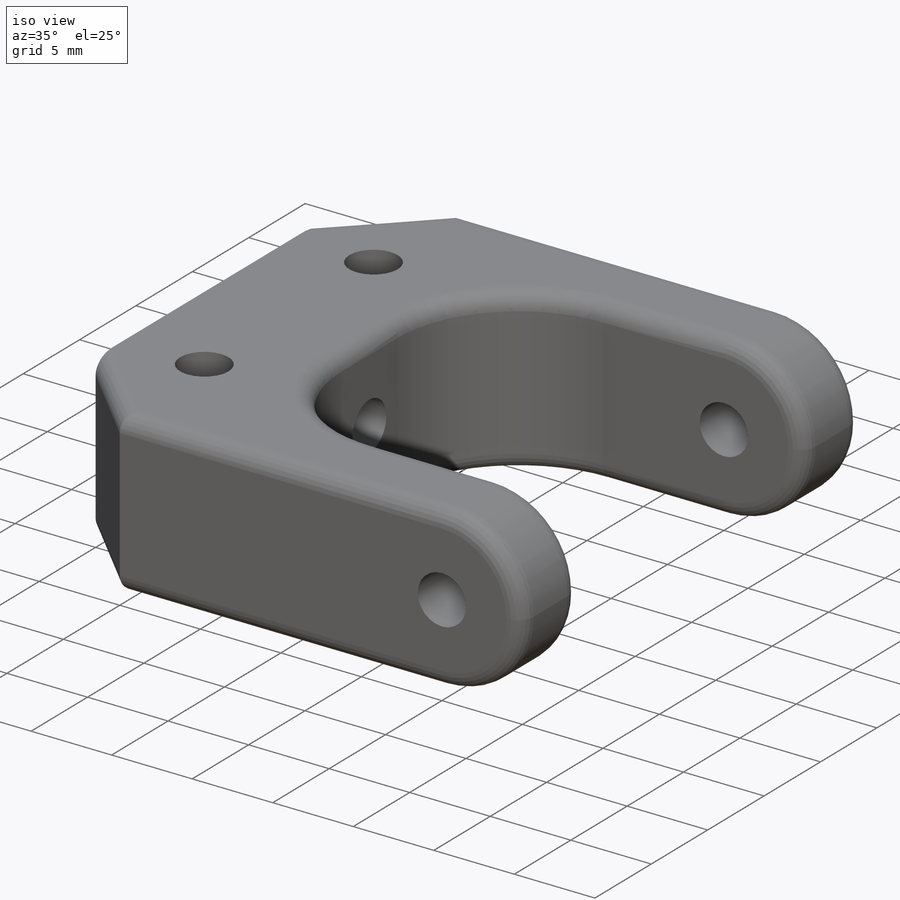
[diagram: iso view]
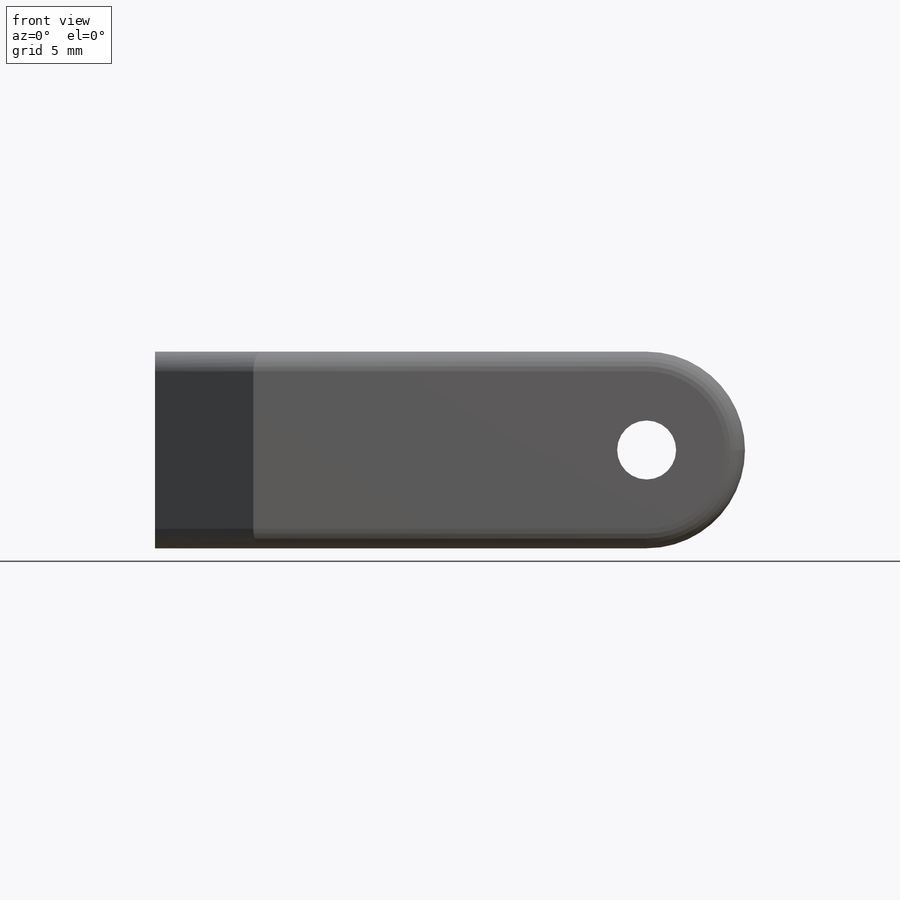
[diagram: front view]
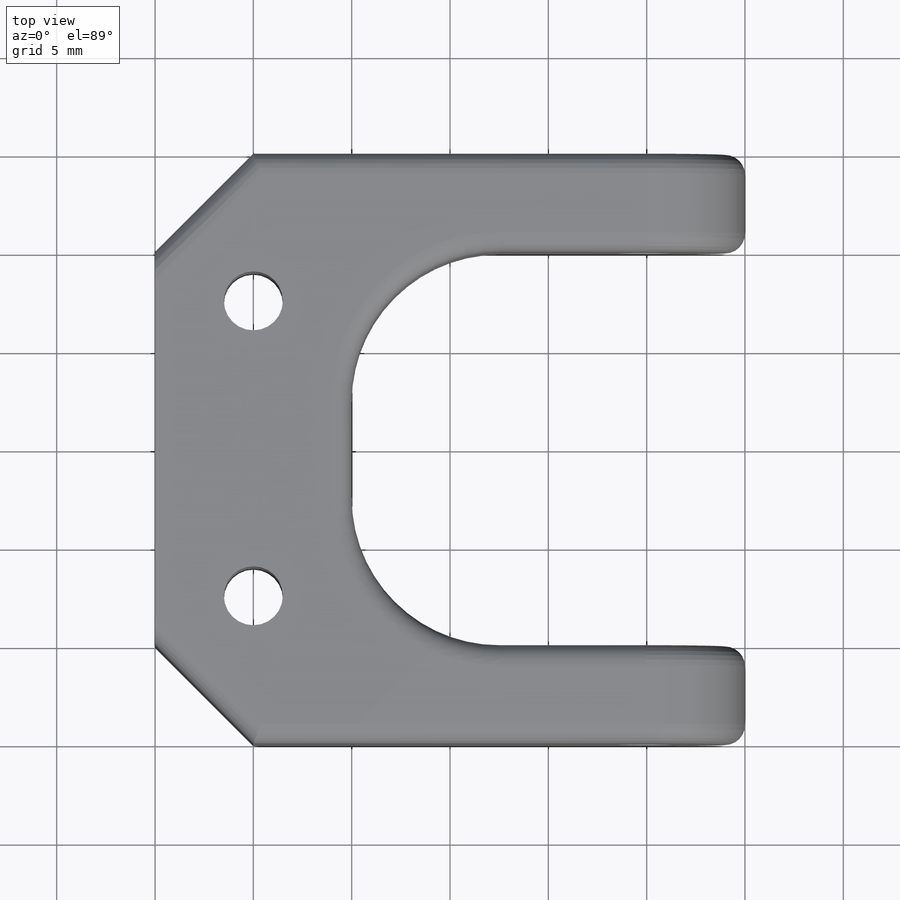
[diagram: top view]
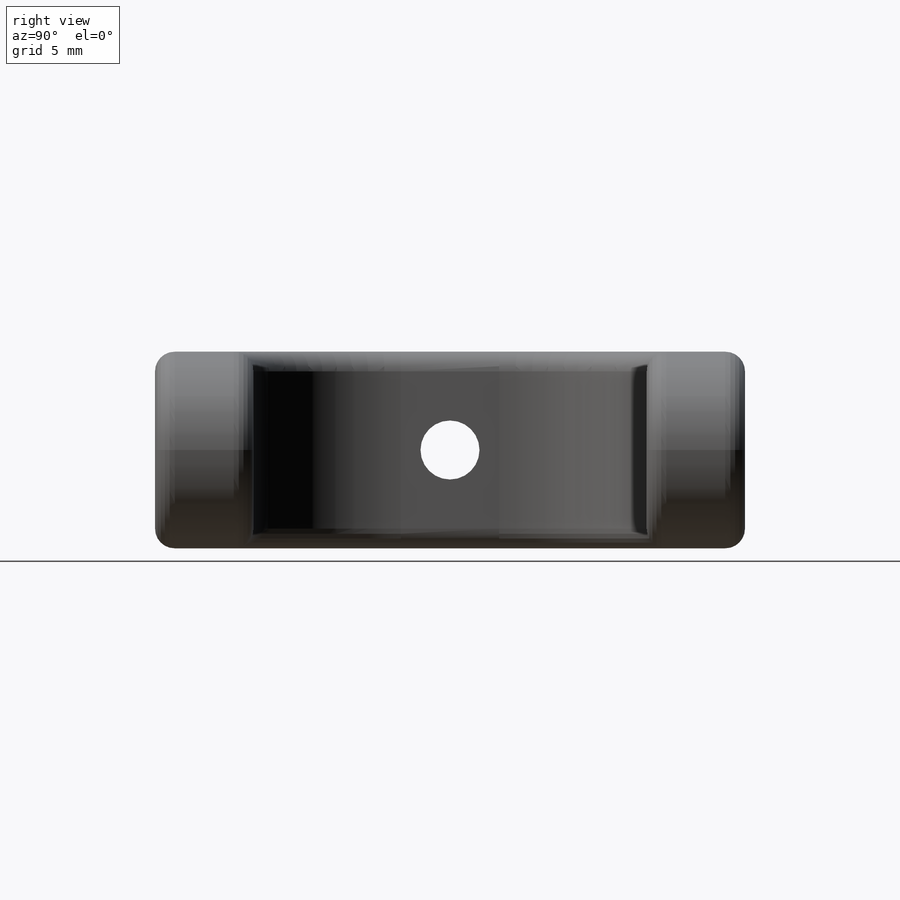
[diagram: right view]
SOLIDWORKS PART (.sldprt)
format: sldprt  version: not decoded by parser v0  size: 426,496 bytes
history: native  units: mm
features: sketch x7, fillet x3, hole x3, material x1, extrude x1 (+12 scaffold rows collapsed)
feature tree (27):
  scaffold x12  (default folders/planes/origin — collapsed)
  material  "Material <not specified>"
  sketch  "Sketch2"  dims[D1=30.0mm D2=30.0mm D3=20.0mm D4=20.0mm D5=5.0mm]
  extrude  "Boss-Extrude1"  Depth=10mm
  fillet  "Fillet1"  Radius=5mm
  hole  "Ø3.0mm Dowel Hole1"  Diameter=3mm Depth=30mm
  sketch  "Sketch4"  dims[D1=5.0mm D2=5.0mm]
  sketch  "Sketch3"  dims[hole-wizard template sketch: 60 standard entries collapsed; hole parameters kept: c18.Thru Hole Depth=30.0mm]
  hole  "Ø3.0mm Dowel Hole2"  Diameter=3mm Depth=30mm
  sketch  "Sketch6"  dims[D1=15.0mm D2=5.0mm]
  sketch  "Sketch5"  dims[hole-wizard template sketch: 60 standard entries collapsed; hole parameters kept: c18.Thru Hole Depth=30.0mm]
  fillet  "Fillet2"  Radius=7.5mm
  fillet  "Fillet3"  Radius=1mm
  hole  "Ø3.0mm Dowel Hole3"  Diameter=3mm Depth=40mm
  sketch  "Sketch8"  dims[D1=5.0mm D2=5.0mm D3=7.5mm D4=7.5mm]
  sketch  "Sketch7"  dims[hole-wizard template sketch: 47 standard entries collapsed; hole parameters kept: c15.Hole Depth=40.0mm c15.D3=~14.816244mm c15.Drill Angle=118.0deg]
decode coverage: 14 of 14 modeling features carry decoded parameters
note: ~ marks probable driven/reference dimensions
note: suppression state not decoded; provenance and decode notes live in map.json
